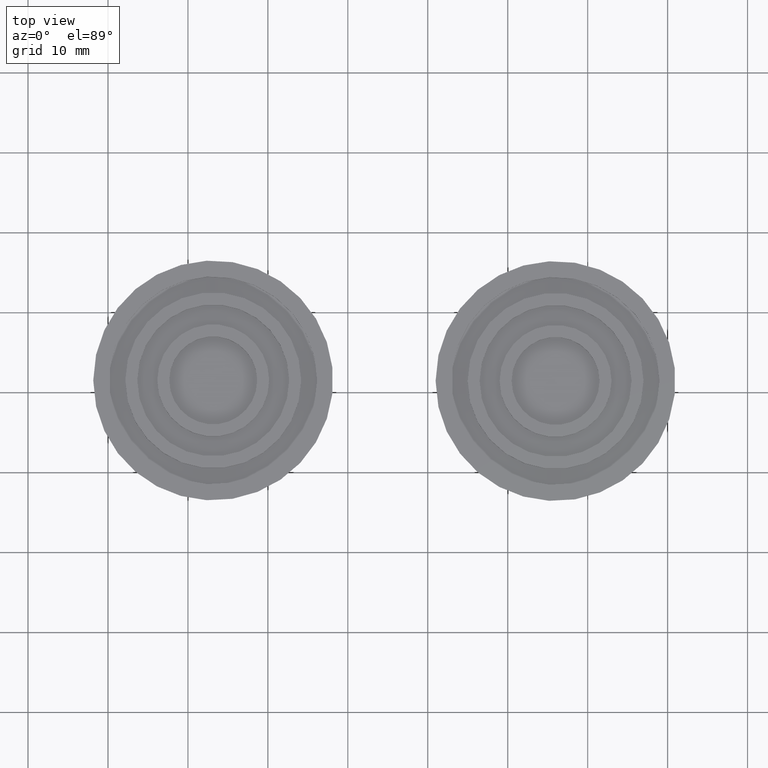
[diagram: clean part render]
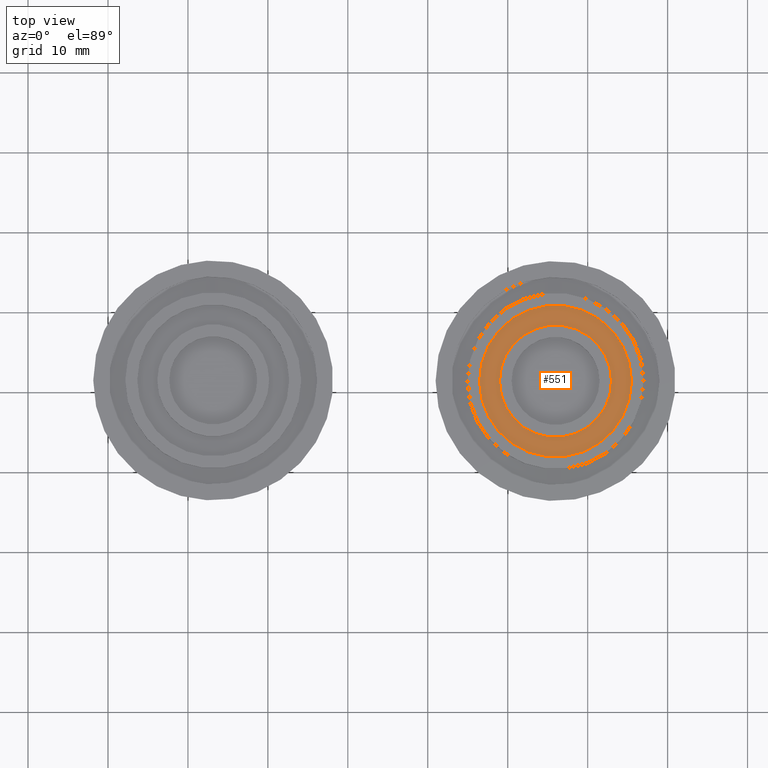
[diagram: same view with one face highlighted and labeled with its STEP entity id]
A machine part, top view. The second image highlights one B-rep face of the part: STEP entity #551.
In plain terms, the highlighted planar face has unit normal (0, -0, 1).
Its self-contained STEP definition (entity closure, byte-faithful):
#49=PLANE('',#650);
#94=FACE_BOUND('',#233,.T.);
#143=FACE_OUTER_BOUND('',#232,.T.);
#232=EDGE_LOOP('',(#472));
#233=EDGE_LOOP('',(#473));
#288=CIRCLE('',#645,7.);
#290=CIRCLE('',#648,9.5);
#336=VERTEX_POINT('',#995);
#338=VERTEX_POINT('',#1000);
#384=EDGE_CURVE('',#336,#336,#288,.T.);
#386=EDGE_CURVE('',#338,#338,#290,.T.);
#472=ORIENTED_EDGE('',*,*,#386,.F.);
#473=ORIENTED_EDGE('',*,*,#384,.F.);
#551=ADVANCED_FACE('',(#143,#94),#49,.T.);
#645=AXIS2_PLACEMENT_3D('',#996,#832,#833);
#648=AXIS2_PLACEMENT_3D('',#1001,#838,#839);
#650=AXIS2_PLACEMENT_3D('',#1004,#842,#843);
#832=DIRECTION('center_axis',(0.,0.,1.));
#833=DIRECTION('ref_axis',(-1.,0.,0.));
#838=DIRECTION('center_axis',(0.,0.,-1.));
#839=DIRECTION('ref_axis',(-1.,0.,0.));
#842=DIRECTION('center_axis',(0.,0.,1.));
#843=DIRECTION('ref_axis',(1.,0.,0.));
#995=CARTESIAN_POINT('',(7.,8.57252759403147E-16,15.5));
#996=CARTESIAN_POINT('Origin',(0.,0.,15.5));
#1000=CARTESIAN_POINT('',(9.5,1.16341445918999E-15,15.5));
#1001=CARTESIAN_POINT('Origin',(0.,0.,15.5));
#1004=CARTESIAN_POINT('Origin',(-4.86503143397466E-16,1.94775969232484E-16,
15.5));